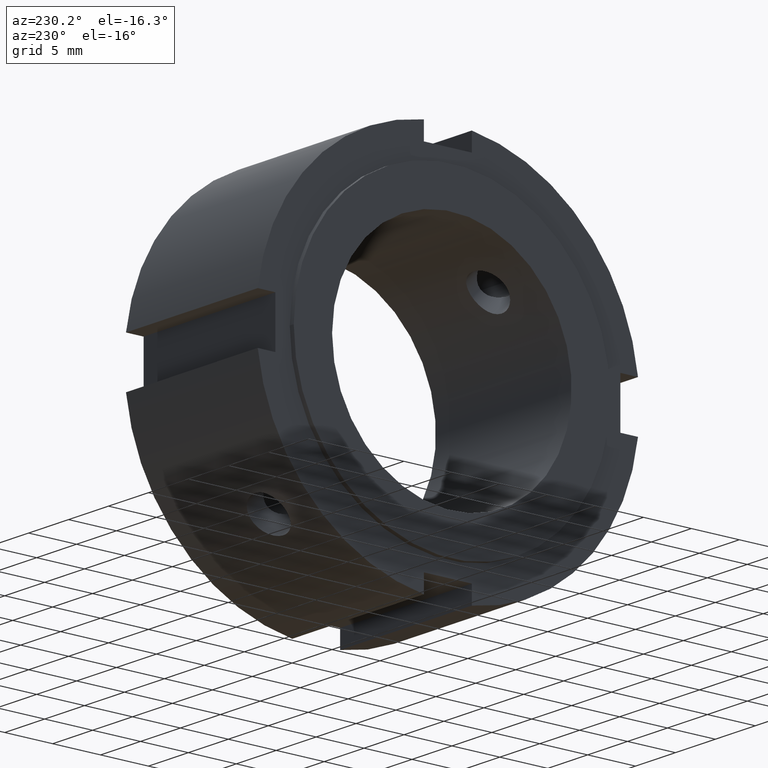
[diagram: clean part render]
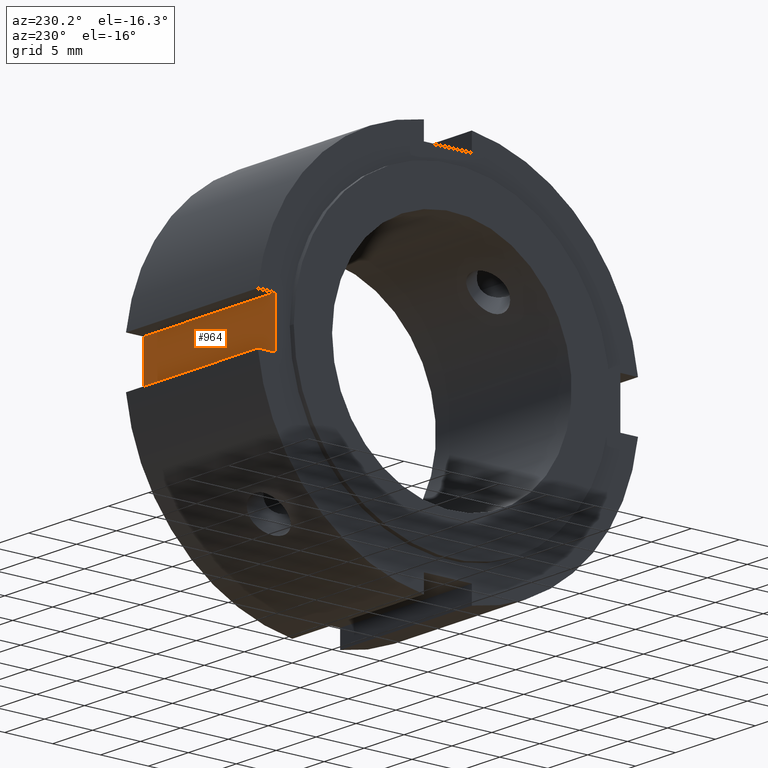
[diagram: same view with one face highlighted and labeled with its STEP entity id]
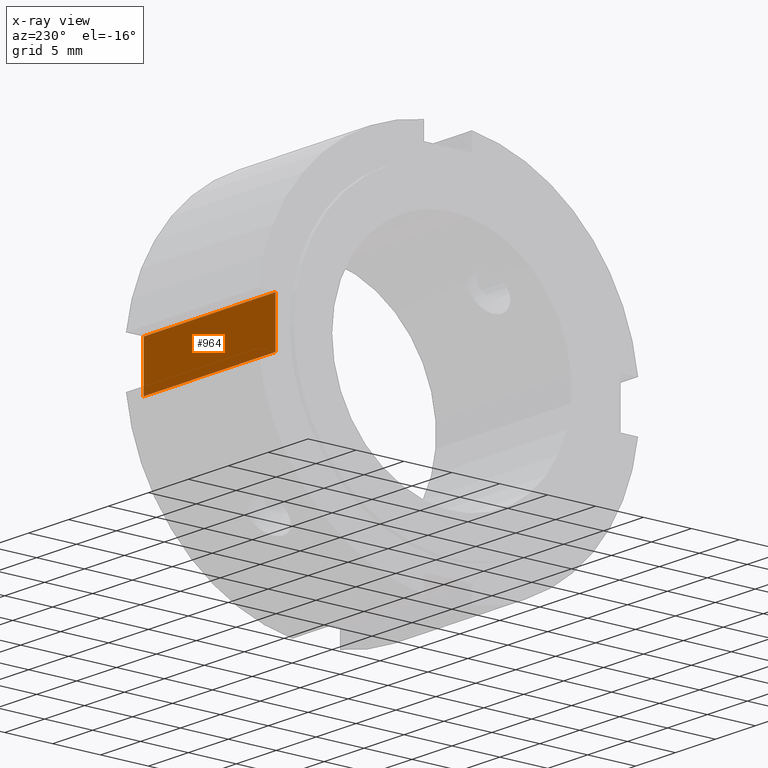
[diagram: x-ray of the same camera — body ghosted, the highlighted face saturated]
A machine part, auxiliary view. The second image highlights one B-rep face of the part: STEP entity #964.
The next image is the same camera in x-ray: the body ghosted, the highlighted face saturated — about 0% of this face is hidden behind the body in this view.
In plain terms, the highlighted planar face has unit normal (0, -1, 0).
Its self-contained STEP definition (entity closure, byte-faithful):
#849=CARTESIAN_POINT('',(16.999999999999996,18.0,-2.5));
#850=VERTEX_POINT('',#849);
#857=CARTESIAN_POINT('',(16.999999999999996,18.0,2.5));
#858=VERTEX_POINT('',#857);
#859=CARTESIAN_POINT('',(16.999999999999996,18.0,-2.499999999999999));
#860=DIRECTION('',(0.0,0.0,1.0));
#861=VECTOR('',#860,4.999999999999998);
#862=LINE('',#859,#861);
#863=EDGE_CURVE('',#850,#858,#862,.T.);
#905=CARTESIAN_POINT('',(0.499999999999998,18.0,-2.5));
#906=VERTEX_POINT('',#905);
#913=CARTESIAN_POINT('',(16.999999999999996,18.0,-2.5));
#914=DIRECTION('',(-1.0,0.0,0.0));
#915=VECTOR('',#914,16.5);
#916=LINE('',#913,#915);
#917=EDGE_CURVE('',#850,#906,#916,.T.);
#929=CARTESIAN_POINT('',(0.499999999999998,18.0,2.5));
#930=VERTEX_POINT('',#929);
#939=CARTESIAN_POINT('',(16.999999999999996,18.0,2.5));
#940=DIRECTION('',(-1.0,0.0,0.0));
#941=VECTOR('',#940,16.5);
#942=LINE('',#939,#941);
#943=EDGE_CURVE('',#858,#930,#942,.T.);
#948=CARTESIAN_POINT('',(16.999999999999996,18.0,2.5));
#949=DIRECTION('',(0.0,-1.0,0.0));
#950=DIRECTION('',(0.0,0.0,-1.0));
#951=AXIS2_PLACEMENT_3D('',#948,#949,#950);
#952=PLANE('',#951);
#953=CARTESIAN_POINT('',(0.499999999999998,18.0,2.5));
#954=DIRECTION('',(0.0,0.0,-1.0));
#955=VECTOR('',#954,4.999999999999998);
#956=LINE('',#953,#955);
#957=EDGE_CURVE('',#930,#906,#956,.T.);
#958=ORIENTED_EDGE('',*,*,#957,.F.);
#959=ORIENTED_EDGE('',*,*,#943,.F.);
#960=ORIENTED_EDGE('',*,*,#863,.F.);
#961=ORIENTED_EDGE('',*,*,#917,.T.);
#962=EDGE_LOOP('',(#958,#959,#960,#961));
#963=FACE_OUTER_BOUND('',#962,.T.);
#964=ADVANCED_FACE('',(#963),#952,.F.);